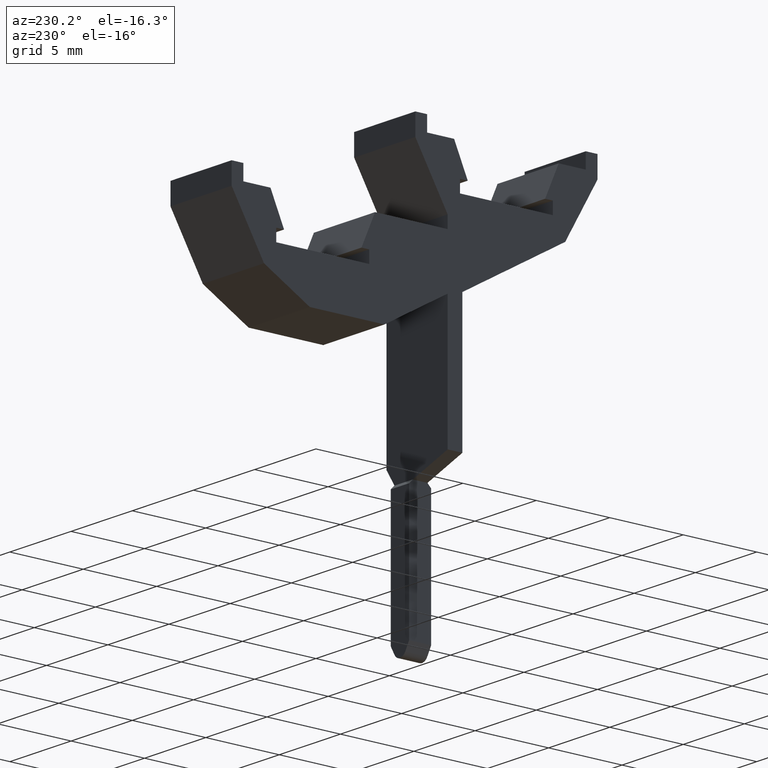
[diagram: clean part render]
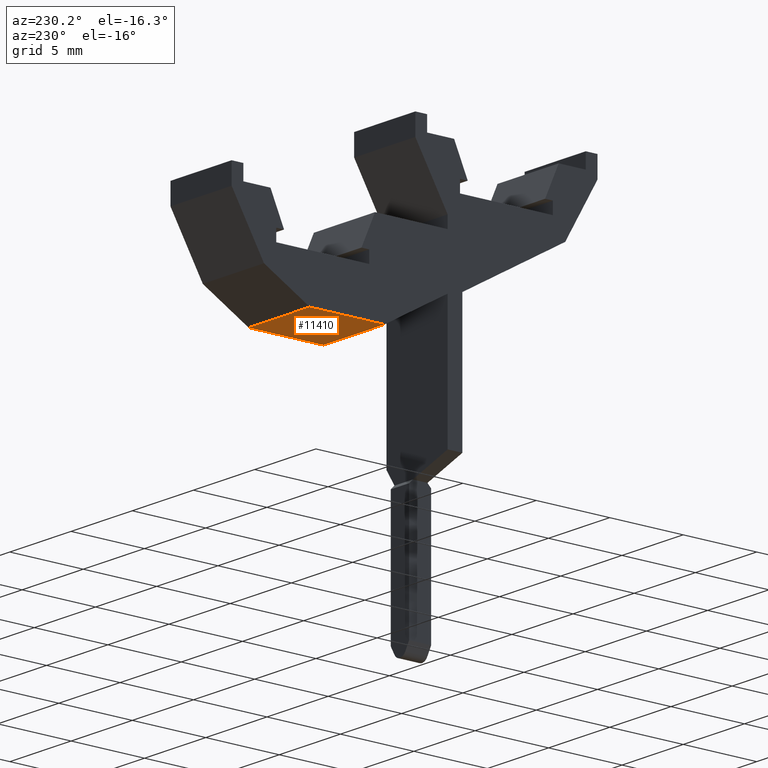
[diagram: same view with one face highlighted and labeled with its STEP entity id]
A machine part, auxiliary view. The second image highlights one B-rep face of the part: STEP entity #11410.
In plain terms, the highlighted planar face has unit normal (-0, -0, -1).
Its self-contained STEP definition (entity closure, byte-faithful):
#2040=CARTESIAN_POINT('',(40.2025,4.85000000000002,0.));
#2050=VERTEX_POINT('',#2040);
#2080=CARTESIAN_POINT('',(0.,4.84999999999976,0.));
#2090=DIRECTION('',(-1.,-6.64387840627412E-15,0.));
#2100=VECTOR('',#2090,1.);
#2110=LINE('',#2080,#2100);
#2120=CARTESIAN_POINT('',(45.2848085463761,4.85000000000006,0.));
#2130=VERTEX_POINT('',#2120);
#2140=EDGE_CURVE('',#2130,#2050,#2110,.T.);
#4190=CARTESIAN_POINT('',(45.2848085463761,4.85000000000006,5.));
#4200=VERTEX_POINT('',#4190);
#4230=CARTESIAN_POINT('',(0.,4.84999999999976,5.));
#4240=DIRECTION('',(-1.,-6.64387840627412E-15,0.));
#4250=VECTOR('',#4240,1.);
#4260=LINE('',#4230,#4250);
#4270=CARTESIAN_POINT('',(40.2025,4.85000000000002,5.));
#4280=VERTEX_POINT('',#4270);
#4290=EDGE_CURVE('',#4200,#4280,#4260,.T.);
#11200=CARTESIAN_POINT('',(44.7489101615139,4.85000000000005,
6.12323399573677E-17));
#11210=DIRECTION('',(6.64387840627412E-15,-1.,0.));
#11220=DIRECTION('',(-1.,-6.64387840627412E-15,0.));
#11230=AXIS2_PLACEMENT_3D('',#11200,#11210,#11220);
#11240=PLANE('',#11230);
#11250=ORIENTED_EDGE('',*,*,#2140,.F.);
#11260=CARTESIAN_POINT('',(40.2025,4.85000000000002,0.));
#11270=DIRECTION('',(0.,0.,-1.));
#11280=VECTOR('',#11270,1.);
#11290=LINE('',#11260,#11280);
#11300=EDGE_CURVE('',#4280,#2050,#11290,.T.);
#11310=ORIENTED_EDGE('',*,*,#11300,.T.);
#11320=ORIENTED_EDGE('',*,*,#4290,.T.);
#11330=CARTESIAN_POINT('',(45.2848085463761,4.85000000000006,0.));
#11340=DIRECTION('',(0.,0.,-1.));
#11350=VECTOR('',#11340,1.);
#11360=LINE('',#11330,#11350);
#11370=EDGE_CURVE('',#4200,#2130,#11360,.T.);
#11380=ORIENTED_EDGE('',*,*,#11370,.F.);
#11390=EDGE_LOOP('',(#11380,#11320,#11310,#11250));
#11400=FACE_OUTER_BOUND('',#11390,.T.);
#11410=ADVANCED_FACE('',(#11400),#11240,.T.);